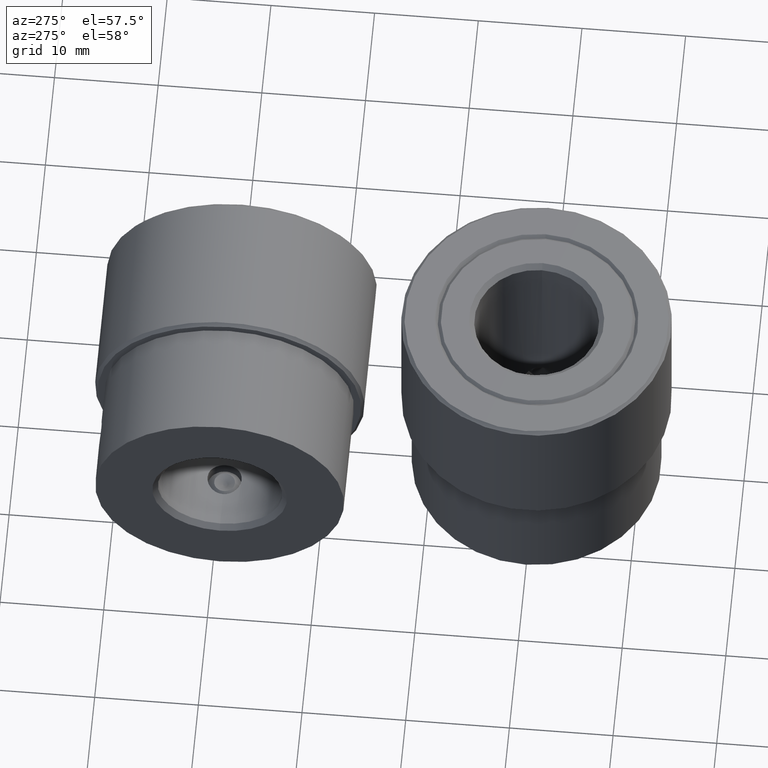
[diagram: clean part render]
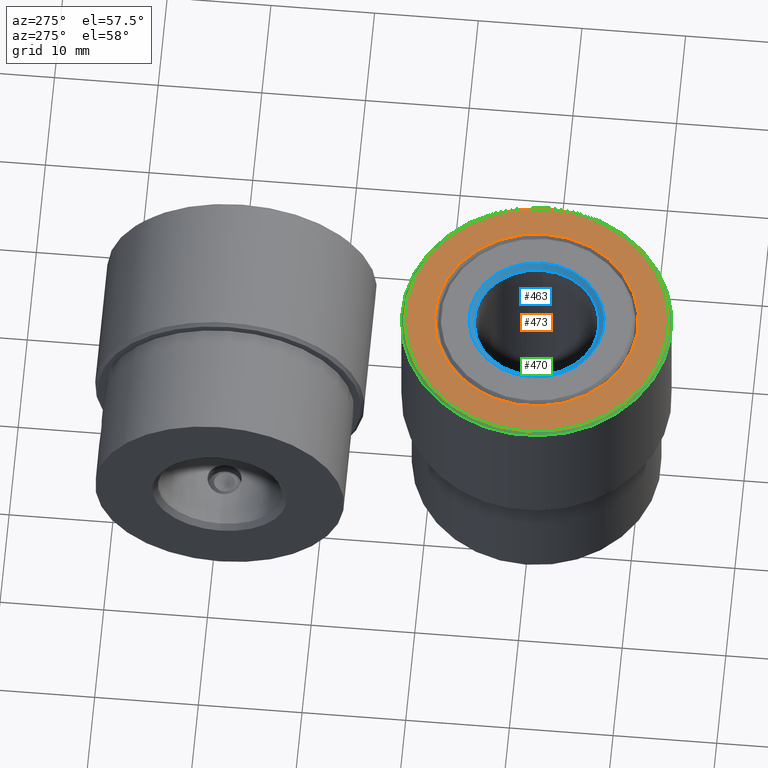
[diagram: same view with three faces highlighted in distinct colors, each labeled with its STEP entity id]
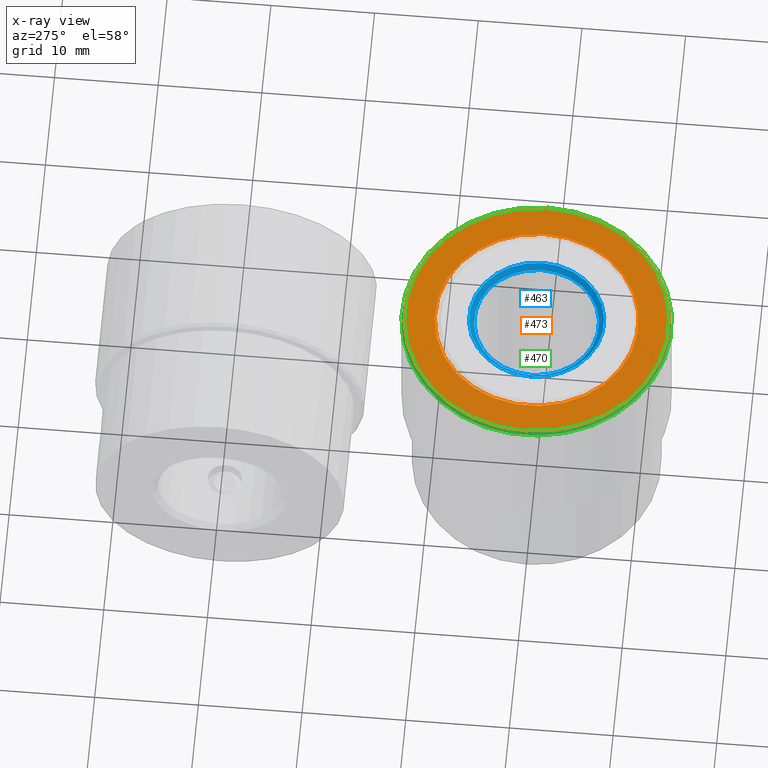
[diagram: x-ray of the same camera — body ghosted, the three highlighted faces saturated]
A machine part, auxiliary view with three faces highlighted in distinct colors.
The next image is the same camera in x-ray (body ghosted, the three faces saturated) — at least one of them is partly hidden behind the body in this view.
Their STEP definitions:

[orange] entity #473 — the highlighted planar face has unit normal (0, 0, 1).
#473 = ADVANCED_FACE( '', ( #602, #603 ), #604, .T. );
#602 = FACE_BOUND( '', #828, .T. );
#603 = FACE_OUTER_BOUND( '', #829, .T. );
#604 = PLANE( '', #830 );
#828 = EDGE_LOOP( '', ( #1090 ) );
#829 = EDGE_LOOP( '', ( #1091 ) );
#830 = AXIS2_PLACEMENT_3D( '', #1092, #1093, #1094 );
#1090 = ORIENTED_EDGE( '', *, *, #1518, .T. );
#1091 = ORIENTED_EDGE( '', *, *, #1517, .T. );
#1092 = CARTESIAN_POINT( '', ( 0.000000000000000, 0.000000000000000, 0.000000000000000 ) );
#1093 = DIRECTION( '', ( 0.000000000000000, 0.000000000000000, 1.00000000000000 ) );
#1094 = DIRECTION( '', ( 1.00000000000000, 0.000000000000000, 0.000000000000000 ) );
#1517 = EDGE_CURVE( '', #1666, #1666, #1667, .T. );
#1518 = EDGE_CURVE( '', #1668, #1668, #1669, .F. );
#1666 = VERTEX_POINT( '', #2106 );
#1667 = CIRCLE( '', #2107, 12.7000000000000 );
#1668 = VERTEX_POINT( '', #2108 );
#1669 = CIRCLE( '', #2109, 9.80000000000000 );
#2106 = CARTESIAN_POINT( '', ( 12.7000000000000, 0.000000000000000, 0.000000000000000 ) );
#2107 = AXIS2_PLACEMENT_3D( '', #2721, #2722, #2723 );
#2108 = CARTESIAN_POINT( '', ( 9.80000000000000, 0.000000000000000, 0.000000000000000 ) );
#2109 = AXIS2_PLACEMENT_3D( '', #2724, #2725, #2726 );
#2721 = CARTESIAN_POINT( '', ( 0.000000000000000, 0.000000000000000, 0.000000000000000 ) );
#2722 = DIRECTION( '', ( 0.000000000000000, 0.000000000000000, 1.00000000000000 ) );
#2723 = DIRECTION( '', ( 1.00000000000000, 0.000000000000000, -0.000000000000000 ) );
#2724 = CARTESIAN_POINT( '', ( 0.000000000000000, 0.000000000000000, 0.000000000000000 ) );
#2725 = DIRECTION( '', ( 0.000000000000000, 0.000000000000000, 1.00000000000000 ) );
#2726 = DIRECTION( '', ( 1.00000000000000, 0.000000000000000, -0.000000000000000 ) );

[blue] entity #463 — the highlighted conical surface has half-angle 45 deg.
#463 = ADVANCED_FACE( '', ( #572, #573 ), #574, .F. );
#572 = FACE_OUTER_BOUND( '', #798, .T. );
#573 = FACE_BOUND( '', #799, .T. );
#574 = CONICAL_SURFACE( '', #800, 6.00000000000000, 0.785398163397448 );
#798 = EDGE_LOOP( '', ( #1040 ) );
#799 = EDGE_LOOP( '', ( #1041 ) );
#800 = AXIS2_PLACEMENT_3D( '', #1042, #1043, #1044 );
#1040 = ORIENTED_EDGE( '', *, *, #1510, .F. );
#1041 = ORIENTED_EDGE( '', *, *, #1507, .F. );
#1042 = CARTESIAN_POINT( '', ( 0.000000000000000, 0.000000000000000, -0.500000000000000 ) );
#1043 = DIRECTION( '', ( 0.000000000000000, -0.000000000000000, 1.00000000000000 ) );
#1044 = DIRECTION( '', ( 1.00000000000000, 0.000000000000000, -0.000000000000000 ) );
#1507 = EDGE_CURVE( '', #1646, #1646, #1647, .T. );
#1510 = EDGE_CURVE( '', #1652, #1652, #1653, .F. );
#1646 = VERTEX_POINT( '', #2086 );
#1647 = CIRCLE( '', #2087, 6.00000000000000 );
#1652 = VERTEX_POINT( '', #2092 );
#1653 = CIRCLE( '', #2093, 6.50000000000000 );
#2086 = CARTESIAN_POINT( '', ( 6.00000000000000, 0.000000000000000, -0.500000000000000 ) );
#2087 = AXIS2_PLACEMENT_3D( '', #2691, #2692, #2693 );
#2092 = CARTESIAN_POINT( '', ( 6.50000000000000, 0.000000000000000, 0.000000000000000 ) );
#2093 = AXIS2_PLACEMENT_3D( '', #2700, #2701, #2702 );
#2691 = CARTESIAN_POINT( '', ( 0.000000000000000, 0.000000000000000, -0.500000000000000 ) );
#2692 = DIRECTION( '', ( 0.000000000000000, 0.000000000000000, 1.00000000000000 ) );
#2693 = DIRECTION( '', ( 1.00000000000000, 0.000000000000000, -0.000000000000000 ) );
#2700 = CARTESIAN_POINT( '', ( 0.000000000000000, 0.000000000000000, 0.000000000000000 ) );
#2701 = DIRECTION( '', ( 0.000000000000000, 0.000000000000000, 1.00000000000000 ) );
#2702 = DIRECTION( '', ( 1.00000000000000, 0.000000000000000, -0.000000000000000 ) );

[green] entity #470 — the highlighted conical surface has half-angle 45 deg.
#470 = ADVANCED_FACE( '', ( #593, #594 ), #595, .T. );
#593 = FACE_OUTER_BOUND( '', #819, .T. );
#594 = FACE_BOUND( '', #820, .T. );
#595 = CONICAL_SURFACE( '', #821, 12.7000000000000, 0.785398163397448 );
#819 = EDGE_LOOP( '', ( #1075 ) );
#820 = EDGE_LOOP( '', ( #1076 ) );
#821 = AXIS2_PLACEMENT_3D( '', #1077, #1078, #1079 );
#1075 = ORIENTED_EDGE( '', *, *, #1511, .F. );
#1076 = ORIENTED_EDGE( '', *, *, #1517, .F. );
#1077 = CARTESIAN_POINT( '', ( 0.000000000000000, 0.000000000000000, 0.000000000000000 ) );
#1078 = DIRECTION( '', ( -0.000000000000000, 0.000000000000000, -1.00000000000000 ) );
#1079 = DIRECTION( '', ( -1.00000000000000, 0.000000000000000, 0.000000000000000 ) );
#1511 = EDGE_CURVE( '', #1654, #1654, #1655, .F. );
#1517 = EDGE_CURVE( '', #1666, #1666, #1667, .T. );
#1654 = VERTEX_POINT( '', #2094 );
#1655 = CIRCLE( '', #2095, 13.0000000000000 );
#1666 = VERTEX_POINT( '', #2106 );
#1667 = CIRCLE( '', #2107, 12.7000000000000 );
#2094 = CARTESIAN_POINT( '', ( 13.0000000000000, 0.000000000000000, -0.300000000000000 ) );
#2095 = AXIS2_PLACEMENT_3D( '', #2703, #2704, #2705 );
#2106 = CARTESIAN_POINT( '', ( 12.7000000000000, 0.000000000000000, 0.000000000000000 ) );
#2107 = AXIS2_PLACEMENT_3D( '', #2721, #2722, #2723 );
#2703 = CARTESIAN_POINT( '', ( 0.000000000000000, 0.000000000000000, -0.300000000000000 ) );
#2704 = DIRECTION( '', ( 0.000000000000000, -0.000000000000000, 1.00000000000000 ) );
#2705 = DIRECTION( '', ( 1.00000000000000, 0.000000000000000, 0.000000000000000 ) );
#2721 = CARTESIAN_POINT( '', ( 0.000000000000000, 0.000000000000000, 0.000000000000000 ) );
#2722 = DIRECTION( '', ( 0.000000000000000, 0.000000000000000, 1.00000000000000 ) );
#2723 = DIRECTION( '', ( 1.00000000000000, 0.000000000000000, -0.000000000000000 ) );